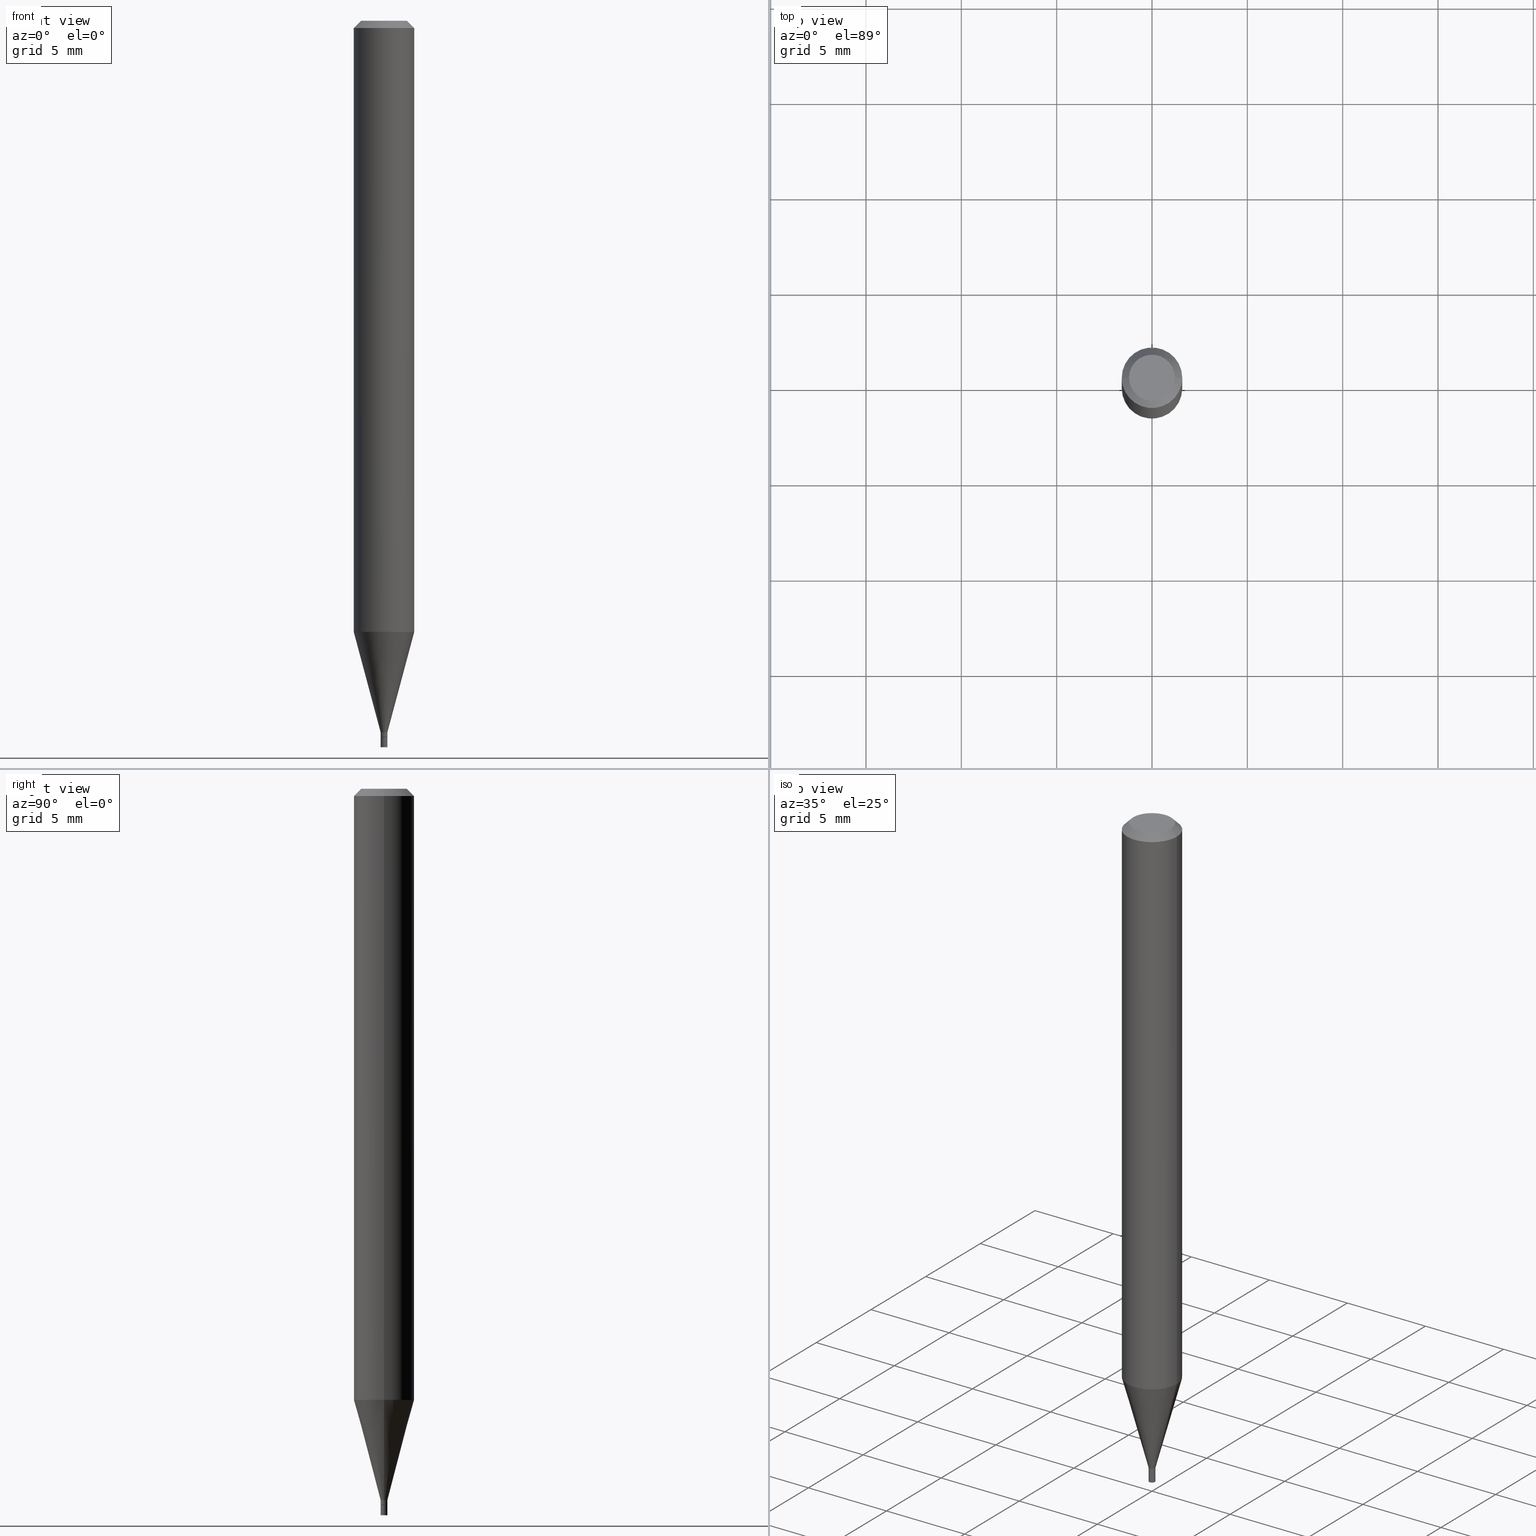
[diagram: canonical four-view strip — front | top / right | iso, engineering-drawing reading convention]
A machine part, canonical four-view strip (front | top / right | iso — engineering-drawing reading convention). The complete STEP part file that produces these views, byte-faithful:
ISO-10303-21;
HEADER;
FILE_DESCRIPTION (( 'STEP AP203' ),
    '1' );
FILE_NAME ('00381.STEP',
    '2024-03-19T21:06:20',
    ( '' ),
    ( '' ),
    'SwSTEP 2.0',
    'SolidWorks 2023',
    '' );
FILE_SCHEMA (( 'CONFIG_CONTROL_DESIGN' ));
ENDSEC;

DATA;
#1 = PERSON_AND_ORGANIZATION ( #192, #408 ) ;
#2 = DATE_AND_TIME ( #32, #464 ) ;
#3 = AXIS2_PLACEMENT_3D ( 'NONE', #134, #100, #136 ) ;
#4 = CARTESIAN_POINT ( 'NONE',  ( -4.460165479722938536E-44, 6.367934238710582481E-30, 1.823848854028390842E-15 ) ) ;
#5 = APPROVAL_DATE_TIME ( #49, #255 ) ;
#6 = PRODUCT_RELATED_PRODUCT_CATEGORY ( 'detail', '', ( #358 ) ) ;
#7 = AXIS2_PLACEMENT_3D ( 'NONE', #172, #319, #315 ) ;
#8 = ORIENTED_EDGE ( 'NONE', *, *, #369, .F. ) ;
#9 = DIRECTION ( 'NONE',  ( 1.000000000000000000, -6.982962677686257244E-15, 0.000000000000000000 ) ) ;
#10 = ORIENTED_EDGE ( 'NONE', *, *, #313, .F. ) ;
#11 = LINE ( 'NONE', #87, #432 ) ;
#12 = VERTEX_POINT ( 'NONE', #372 ) ;
#13 = ORIENTED_EDGE ( 'NONE', *, *, #135, .F. ) ;
#14 = EDGE_CURVE ( 'NONE', #454, #157, #399, .T. ) ;
#15 = PRODUCT_DEFINITION_SHAPE ( 'NONE', 'NONE',  #92 ) ;
#16 = CARTESIAN_POINT ( 'NONE',  ( 0.06249999999999999306, -4.842234844977585811E-15, -1.261871180179927610 ) ) ;
#17 = CARTESIAN_POINT ( 'NONE',  ( -0.007000000000000001013, -5.150823462703658756E-15, -1.479000000000000092 ) ) ;
#18 = ORIENTED_EDGE ( 'NONE', *, *, #369, .T. ) ;
#19 = VERTEX_POINT ( 'NONE', #79 ) ;
#20 = ORIENTED_EDGE ( 'NONE', *, *, #248, .T. ) ;
#21 = CONICAL_SURFACE ( 'NONE', #407, 0.006999999999999920348, 0.2617993877991500740 ) ;
#22 = LOCAL_TIME ( 17, 6, 20.00000000000000000, #280 ) ;
#23 = ORIENTED_EDGE ( 'NONE', *, *, #310, .T. ) ;
#24 = DIRECTION ( 'NONE',  ( 1.000000000000000000, -6.982962677686266711E-15, 4.876176775795935232E-29 ) ) ;
#25 = LINE ( 'NONE', #427, #439 ) ;
#26 = PLANE ( 'NONE',  #112 ) ;
#27 = PERSON_AND_ORGANIZATION ( #192, #408 ) ;
#28 = PERSON_AND_ORGANIZATION ( #192, #408 ) ;
#29 = CARTESIAN_POINT ( 'NONE',  ( -0.006999999999999920348, -4.520479281514752345E-15, -1.469000000000000083 ) ) ;
#30 = EDGE_CURVE ( 'NONE', #81, #12, #161, .T. ) ;
#31 = CARTESIAN_POINT ( 'NONE',  ( 3.668203209277705088E-31, -5.237222008264718399E-17, -0.01499999999999999944 ) ) ;
#32 = CALENDAR_DATE ( 2024, 19, 3 ) ;
#33 = DIRECTION ( 'NONE',  ( -1.000000000000000000, 6.982962677686265922E-15, -4.876176775795935793E-29 ) ) ;
#34 = PLANE ( 'NONE',  #108 ) ;
#35 = FACE_OUTER_BOUND ( 'NONE', #309, .T. ) ;
#36 = LENGTH_MEASURE_WITH_UNIT ( LENGTH_MEASURE( 0.02539999999999999897 ), #252 );
#37 = DIRECTION ( 'NONE',  ( -2.445468806185136597E-29, 3.491481338843145583E-15, 1.000000000000000000 ) ) ;
#38 = AXIS2_PLACEMENT_3D ( 'NONE', #91, #414, #198 ) ;
#39 = ADVANCED_FACE ( 'NONE', ( #271 ), #254, .T. ) ;
#40 = DIRECTION ( 'NONE',  ( -2.445468806185136877E-29, 3.491481338843145188E-15, 1.000000000000000000 ) ) ;
#41 = DIRECTION ( 'NONE',  ( -0.7071067811865044961, 2.468850131081806621E-15, -0.7071067811865903163 ) ) ;
#42 = ORIENTED_EDGE ( 'NONE', *, *, #245, .F. ) ;
#43 = DIRECTION ( 'NONE',  ( -0.2588190451025213501, 5.211531920934551042E-15, 0.9659258262890682012 ) ) ;
#44 = CC_DESIGN_DATE_AND_TIME_ASSIGNMENT ( #2, #441, ( #216 ) ) ;
#45 = ORIENTED_EDGE ( 'NONE', *, *, #418, .T. ) ;
#46 = AXIS2_PLACEMENT_3D ( 'NONE', #249, #297, #90 ) ;
#47 = DIRECTION ( 'NONE',  ( 1.000000000000000000, -6.982962677686332186E-15, 0.000000000000000000 ) ) ;
#48 = ORIENTED_EDGE ( 'NONE', *, *, #110, .T. ) ;
#49 = DATE_AND_TIME ( #158, #181 ) ;
#50 = EDGE_LOOP ( 'NONE', ( #243, #430 ) ) ;
#51 = DIRECTION ( 'NONE',  ( -2.445468806185136597E-29, 3.491481338843145583E-15, 1.000000000000000000 ) ) ;
#52 = FACE_OUTER_BOUND ( 'NONE', #123, .T. ) ;
#53 = CIRCLE ( 'NONE', #38, 0.007000000000000001013 ) ;
#54 = AXIS2_PLACEMENT_3D ( 'NONE', #388, #217, #24 ) ;
#55 = ORIENTED_EDGE ( 'NONE', *, *, #418, .F. ) ;
#56 = VERTEX_POINT ( 'NONE', #253 ) ;
#57 = CARTESIAN_POINT ( 'NONE',  ( 3.615625629944724521E-29, -5.162155159479591157E-15, -1.478500000000000147 ) ) ;
#58 = VECTOR ( 'NONE', #43, 39.37007874015747433 ) ;
#59 = CARTESIAN_POINT ( 'NONE',  ( 0.000000000000000000, 0.000000000000000000, 0.000000000000000000 ) ) ;
#60 = CARTESIAN_POINT ( 'NONE',  ( 0.000000000000000000, 0.000000000000000000, 0.000000000000000000 ) ) ;
#61 = PERSON_AND_ORGANIZATION_ROLE ( 'design_owner' ) ;
#62 = EDGE_CURVE ( 'NONE', #19, #199, #281, .T. ) ;
#63 = CALENDAR_DATE ( 2024, 19, 3 ) ;
#64 = DIRECTION ( 'NONE',  ( -2.438088387897960049E-29, 3.491481338843145188E-15, 1.000000000000000000 ) ) ;
#65 = DIRECTION ( 'NONE',  ( 1.000000000000000000, -6.982962677686257244E-15, 0.000000000000000000 ) ) ;
#66 = APPROVAL_DATE_TIME ( #256, #165 ) ;
#67 = AXIS2_PLACEMENT_3D ( 'NONE', #327, #173, #316 ) ;
#68 = VECTOR ( 'NONE', #178, 39.37007874015748143 ) ;
#69 = SECURITY_CLASSIFICATION_LEVEL ( 'unclassified' ) ;
#70 = DIRECTION ( 'NONE',  ( 1.000000000000000000, -6.982962677686273021E-15, 0.000000000000000000 ) ) ;
#71 = PERSON_AND_ORGANIZATION ( #192, #408 ) ;
#72 = FACE_OUTER_BOUND ( 'NONE', #318, .T. ) ;
#73 = DIRECTION ( 'NONE',  ( 1.000000000000000000, -6.982962677686273021E-15, 0.000000000000000000 ) ) ;
#74 = AXIS2_PLACEMENT_3D ( 'NONE', #196, #235, #338 ) ;
#75 = AXIS2_PLACEMENT_3D ( 'NONE', #445, #415, #201 ) ;
#76 = COORDINATED_UNIVERSAL_TIME_OFFSET ( 5, 0, .BEHIND. ) ;
#77 = EDGE_CURVE ( 'NONE', #454, #383, #182, .T. ) ;
#78 = EDGE_LOOP ( 'NONE', ( #96, #264, #239, #89 ) ) ;
#79 = CARTESIAN_POINT ( 'NONE',  ( -0.06249999999999999306, -3.961710467772130736E-15, -1.261871180179927610 ) ) ;
#80 = CARTESIAN_POINT ( 'NONE',  ( 3.616848364347817323E-29, -5.163900900149012660E-15, -1.479000000000000092 ) ) ;
#81 = VERTEX_POINT ( 'NONE', #140 ) ;
#82 = CC_DESIGN_APPROVAL ( #233, ( #92 ) ) ;
#83 = DIRECTION ( 'NONE',  ( -2.445468806185136877E-29, 3.491481338843145188E-15, 1.000000000000000000 ) ) ;
#84 = DIRECTION ( 'NONE',  ( -2.445468806185136877E-29, 3.491481338843145188E-15, 1.000000000000000000 ) ) ;
#85 = CARTESIAN_POINT ( 'NONE',  ( -0.006999999999999922951, -5.112417167976384888E-15, -1.478500000000000147 ) ) ;
#86 = LINE ( 'NONE', #240, #322 ) ;
#87 = CARTESIAN_POINT ( 'NONE',  ( 0.006500000000000000569, -5.209290157553973331E-15, -1.479000000000000092 ) ) ;
#88 = CARTESIAN_POINT ( 'NONE',  ( 0.006999999999999920348, -5.177866825504383900E-15, -1.469000000000000083 ) ) ;
#89 = ORIENTED_EDGE ( 'NONE', *, *, #125, .F. ) ;
#90 = DIRECTION ( 'NONE',  ( 1.000000000000000000, -6.982962677686257244E-15, 0.000000000000000000 ) ) ;
#91 = CARTESIAN_POINT ( 'NONE',  ( 3.616848364347817323E-29, -5.163900900149012660E-15, -1.479000000000000092 ) ) ;
#92 = PRODUCT_DEFINITION ( 'UNKNOWN', '', #301, #213 ) ;
#93 = VERTEX_POINT ( 'NONE', #29 ) ;
#94 = AXIS2_PLACEMENT_3D ( 'NONE', #126, #51, #311 ) ;
#95 = ORIENTED_EDGE ( 'NONE', *, *, #248, .F. ) ;
#96 = ORIENTED_EDGE ( 'NONE', *, *, #149, .F. ) ;
#97 = DIRECTION ( 'NONE',  ( 1.000000000000000000, -6.982962677686332186E-15, 0.000000000000000000 ) ) ;
#98 = ADVANCED_FACE ( 'NONE', ( #402 ), #107, .F. ) ;
#99 = VECTOR ( 'NONE', #257, 39.37007874015748143 ) ;
#100 = DIRECTION ( 'NONE',  ( -2.445468806185136597E-29, 3.491481338843145583E-15, 1.000000000000000000 ) ) ;
#101 = APPLICATION_PROTOCOL_DEFINITION ( 'international standard', 'config_control_design', 1994, #194 ) ;
#102 = AXIS2_PLACEMENT_3D ( 'NONE', #285, #436, #70 ) ;
#103 = CYLINDRICAL_SURFACE ( 'NONE', #215, 0.006999999999999922083 ) ;
#104 = EDGE_CURVE ( 'NONE', #157, #132, #25, .T. ) ;
#105 = APPLICATION_PROTOCOL_DEFINITION ( 'international standard', 'config_control_design', 1994, #266 ) ;
#106 = APPROVAL_STATUS ( 'not_yet_approved' ) ;
#107 = PLANE ( 'NONE',  #344 ) ;
#108 = AXIS2_PLACEMENT_3D ( 'NONE', #294, #291, #295 ) ;
#109 = CARTESIAN_POINT ( 'NONE',  ( 3.668203209277705088E-31, -5.237222008264718399E-17, -0.01499999999999999944 ) ) ;
#110 = EDGE_CURVE ( 'NONE', #275, #269, #236, .T. ) ;
#111 = DIRECTION ( 'NONE',  ( 1.000000000000000000, -6.982962677686266711E-15, 0.000000000000000000 ) ) ;
#112 = AXIS2_PLACEMENT_3D ( 'NONE', #428, #425, #169 ) ;
#113 = APPROVAL_PERSON_ORGANIZATION ( #28, #233, #355 ) ;
#114 = ADVANCED_FACE ( 'NONE', ( #448 ), #21, .T. ) ;
#115 = ORIENTED_EDGE ( 'NONE', *, *, #62, .F. ) ;
#116 = ORIENTED_EDGE ( 'NONE', *, *, #457, .T. ) ;
#117 = CARTESIAN_POINT ( 'NONE',  ( -0.06250000000000000000, 3.840629472727444916E-16, -0.01499999999999999944 ) ) ;
#118 = ORIENTED_EDGE ( 'NONE', *, *, #286, .T. ) ;
#119 = DIRECTION ( 'NONE',  ( 1.000000000000000000, -6.982962677686266711E-15, 0.000000000000000000 ) ) ;
#120 = CARTESIAN_POINT ( 'NONE',  ( -0.006999999999999922083, 4.973799150320645938E-17, -3.443254563178395329E-31 ) ) ;
#121 = ORIENTED_EDGE ( 'NONE', *, *, #185, .T. ) ;
#122 = ORIENTED_EDGE ( 'NONE', *, *, #434, .F. ) ;
#123 = EDGE_LOOP ( 'NONE', ( #456, #462, #122, #420 ) ) ;
#124 = AXIS2_PLACEMENT_3D ( 'NONE', #246, #64, #221 ) ;
#125 = EDGE_CURVE ( 'NONE', #251, #210, #152, .T. ) ;
#126 = CARTESIAN_POINT ( 'NONE',  ( -4.460165479722938536E-44, 6.367934238710582481E-30, 1.823848854028390842E-15 ) ) ;
#127 = CARTESIAN_POINT ( 'NONE',  ( 0.006999999999999920348, -5.177866825504383900E-15, -1.469000000000000083 ) ) ;
#128 = CLOSED_SHELL ( 'NONE', ( #176, #406, #354, #277, #325, #114, #296, #321, #98, #342, #267, #129 ) ) ;
#129 = ADVANCED_FACE ( 'NONE', ( #290 ), #328, .T. ) ;
#130 = AXIS2_PLACEMENT_3D ( 'NONE', #31, #228, #258 ) ;
#131 = ORIENTED_EDGE ( 'NONE', *, *, #313, .T. ) ;
#132 = VERTEX_POINT ( 'NONE', #265 ) ;
#133 = EDGE_LOOP ( 'NONE', ( #171, #170, #211, #345 ) ) ;
#134 = CARTESIAN_POINT ( 'NONE',  ( 3.592393676285966338E-29, -5.128986086760581011E-15, -1.469000000000000083 ) ) ;
#135 = EDGE_CURVE ( 'NONE', #19, #210, #150, .T. ) ;
#136 = DIRECTION ( 'NONE',  ( 1.000000000000000000, -6.982962677686273021E-15, 0.000000000000000000 ) ) ;
#137 =( NAMED_UNIT ( * ) SI_UNIT ( $, .STERADIAN. ) SOLID_ANGLE_UNIT ( ) );
#138 = FACE_OUTER_BOUND ( 'NONE', #200, .T. ) ;
#139 = PERSON_AND_ORGANIZATION_ROLE ( 'creator' ) ;
#140 = CARTESIAN_POINT ( 'NONE',  ( -0.006500000000000000569, -5.115066395150495301E-15, -1.479000000000000092 ) ) ;
#141 = FACE_OUTER_BOUND ( 'NONE', #382, .T. ) ;
#142 = CARTESIAN_POINT ( 'NONE',  ( 0.000000000000000000, 0.000000000000000000, 0.000000000000000000 ) ) ;
#143 = FACE_OUTER_BOUND ( 'NONE', #268, .T. ) ;
#144 = DATE_AND_TIME ( #435, #22 ) ;
#145 = EDGE_CURVE ( 'NONE', #210, #426, #389, .T. ) ;
#146 = PERSON_AND_ORGANIZATION_ROLE ( 'creator' ) ;
#147 = AXIS2_PLACEMENT_3D ( 'NONE', #263, #409, #332 ) ;
#148 = APPROVAL_PERSON_ORGANIZATION ( #466, #165, #287 ) ;
#149 = EDGE_CURVE ( 'NONE', #56, #251, #347, .T. ) ;
#150 = LINE ( 'NONE', #232, #206 ) ;
#151 = EDGE_CURVE ( 'NONE', #157, #454, #261, .T. ) ;
#152 = LINE ( 'NONE', #117, #367 ) ;
#153 = AXIS2_PLACEMENT_3D ( 'NONE', #395, #278, #65 ) ;
#154 = CC_DESIGN_SECURITY_CLASSIFICATION ( #216, ( #301 ) ) ;
#155 = LINE ( 'NONE', #127, #458 ) ;
#156 = DIRECTION ( 'NONE',  ( -2.445468806185136597E-29, 3.491481338843145583E-15, 1.000000000000000000 ) ) ;
#157 = VERTEX_POINT ( 'NONE', #465 ) ;
#158 = CALENDAR_DATE ( 2024, 19, 3 ) ;
#159 = ORIENTED_EDGE ( 'NONE', *, *, #135, .T. ) ;
#160 = CC_DESIGN_PERSON_AND_ORGANIZATION_ASSIGNMENT ( #219, #360, ( #301 ) ) ;
#161 = CIRCLE ( 'NONE', #74, 0.006500000000000000569 ) ;
#162 = AXIS2_PLACEMENT_3D ( 'NONE', #242, #419, #9 ) ;
#163 = LINE ( 'NONE', #120, #455 ) ;
#164 = ORIENTED_EDGE ( 'NONE', *, *, #223, .F. ) ;
#165 = APPROVAL ( #106, 'UNSPECIFIED' ) ;
#166 = ORIENTED_EDGE ( 'NONE', *, *, #110, .F. ) ;
#167 = FACE_OUTER_BOUND ( 'NONE', #50, .T. ) ;
#168 = VECTOR ( 'NONE', #83, 39.37007874015748143 ) ;
#169 = DIRECTION ( 'NONE',  ( -1.000000000000000000, 6.982962677686265922E-15, -4.876176775795935793E-29 ) ) ;
#170 = ORIENTED_EDGE ( 'NONE', *, *, #14, .T. ) ;
#171 = ORIENTED_EDGE ( 'NONE', *, *, #77, .F. ) ;
#172 = CARTESIAN_POINT ( 'NONE',  ( 3.592393676285966338E-29, -5.128986086760581011E-15, -1.469000000000000083 ) ) ;
#173 = DIRECTION ( 'NONE',  ( -2.445468806185136597E-29, 3.491481338843145583E-15, 1.000000000000000000 ) ) ;
#174 = CARTESIAN_POINT ( 'NONE',  ( -0.06250000000000000000, -1.784996739002358191E-15, -0.01499999999999999944 ) ) ;
#175 = ORIENTED_EDGE ( 'NONE', *, *, #185, .F. ) ;
#176 = ADVANCED_FACE ( 'NONE', ( #429 ), #103, .T. ) ;
#177 = DIRECTION ( 'NONE',  ( 1.000000000000000000, -6.982962677686262766E-15, 0.000000000000000000 ) ) ;
#178 = DIRECTION ( 'NONE',  ( -0.7071067811865642261, 7.493145998870414114E-15, 0.7071067811865309194 ) ) ;
#179 = CIRCLE ( 'NONE', #446, 0.06250000000000000000 ) ;
#180 = DIRECTION ( 'NONE',  ( 1.000000000000000000, -6.982962677686262766E-15, 0.000000000000000000 ) ) ;
#181 = LOCAL_TIME ( 17, 6, 20.00000000000000000, #76 ) ;
#182 = LINE ( 'NONE', #356, #99 ) ;
#183 = DIRECTION ( 'NONE',  ( -1.000000000000000000, 6.982962677686266711E-15, 0.000000000000000000 ) ) ;
#184 = DIRECTION ( 'NONE',  ( 1.000000000000000000, -6.982962677686266711E-15, 4.876176775795935232E-29 ) ) ;
#185 = EDGE_CURVE ( 'NONE', #93, #19, #276, .T. ) ;
#186 =( NAMED_UNIT ( * ) PLANE_ANGLE_UNIT ( ) SI_UNIT ( $, .RADIAN. ) );
#187 = DIRECTION ( 'NONE',  ( -2.445468806185136877E-29, 3.491481338843145188E-15, 1.000000000000000000 ) ) ;
#188 = CARTESIAN_POINT ( 'NONE',  ( 3.592393676285966338E-29, -5.128986086760581011E-15, -1.469000000000000083 ) ) ;
#189 = ORIENTED_EDGE ( 'NONE', *, *, #149, .T. ) ;
#190 = CLOSED_SHELL ( 'NONE', ( #39, #368, #234, #209 ) ) ;
#191 = CONICAL_SURFACE ( 'NONE', #282, 0.06250000000000000000, 0.7853981633973876608 ) ;
#192 = PERSON ( 'UNSPECIFIED', 'UNSPECIFIED', 'UNSPECIFIED', ('UNSPECIFIED'), ('UNSPECIFIED'), ('UNSPECIFIED') ) ;
#193 = EDGE_CURVE ( 'NONE', #383, #132, #53, .T. ) ;
#194 = APPLICATION_CONTEXT ( 'configuration controlled 3d designs of mechanical parts and assemblies' ) ;
#195 = AXIS2_PLACEMENT_3D ( 'NONE', #351, #279, #177 ) ;
#196 = CARTESIAN_POINT ( 'NONE',  ( 3.616848364347817323E-29, -5.163900900149012660E-15, -1.479000000000000092 ) ) ;
#197 = CONICAL_SURFACE ( 'NONE', #102, 0.006999999999999920348, 0.2617993877991500740 ) ;
#198 = DIRECTION ( 'NONE',  ( 1.000000000000000000, -6.982962677686332186E-15, 0.000000000000000000 ) ) ;
#199 = VERTEX_POINT ( 'NONE', #16 ) ;
#200 = EDGE_LOOP ( 'NONE', ( #20, #121, #387, #55 ) ) ;
#201 = DIRECTION ( 'NONE',  ( 1.000000000000000000, -6.982962677686266711E-15, 4.876176775795935793E-29 ) ) ;
#202 = EDGE_CURVE ( 'NONE', #56, #426, #86, .T. ) ;
#203 = DIRECTION ( 'NONE',  ( -2.445468806185136597E-29, 3.491481338843145583E-15, 1.000000000000000000 ) ) ;
#204 = ORIENTED_EDGE ( 'NONE', *, *, #218, .T. ) ;
#205 = DIRECTION ( 'NONE',  ( -2.445468806185136597E-29, 3.491481338843145583E-15, 1.000000000000000000 ) ) ;
#206 = VECTOR ( 'NONE', #40, 39.37007874015748143 ) ;
#207 = LOCAL_TIME ( 17, 6, 20.00000000000000000, #320 ) ;
#208 = ORIENTED_EDGE ( 'NONE', *, *, #30, .T. ) ;
#209 = ADVANCED_FACE ( 'NONE', ( #167 ), #26, .F. ) ;
#210 = VERTEX_POINT ( 'NONE', #174 ) ;
#211 = ORIENTED_EDGE ( 'NONE', *, *, #104, .T. ) ;
#212 = EDGE_LOOP ( 'NONE', ( #118, #189 ) ) ;
#213 = DESIGN_CONTEXT ( 'detailed design', #266, 'design' ) ;
#214 = ORIENTED_EDGE ( 'NONE', *, *, #151, .F. ) ;
#215 = AXIS2_PLACEMENT_3D ( 'NONE', #60, #353, #184 ) ;
#216 = SECURITY_CLASSIFICATION ( '', '', #69 ) ;
#217 = DIRECTION ( 'NONE',  ( -2.445468806185136597E-29, 3.491481338843145583E-15, 1.000000000000000000 ) ) ;
#218 = EDGE_CURVE ( 'NONE', #199, #19, #179, .T. ) ;
#219 = PERSON_AND_ORGANIZATION ( #192, #408 ) ;
#220 = DIRECTION ( 'NONE',  ( -2.445468806185136597E-29, 3.491481338843145583E-15, 1.000000000000000000 ) ) ;
#221 = DIRECTION ( 'NONE',  ( 1.000000000000000000, -6.982962677686265922E-15, 4.876176775795935793E-29 ) ) ;
#222 = PERSON_AND_ORGANIZATION ( #192, #408 ) ;
#223 = EDGE_CURVE ( 'NONE', #12, #81, #357, .T. ) ;
#224 = PERSON_AND_ORGANIZATION ( #192, #408 ) ;
#225 = CARTESIAN_POINT ( 'NONE',  ( 3.316907271900976096E-16, 0.04749999999999999362, 7.460790634191459752E-16 ) ) ;
#226 = DIRECTION ( 'NONE',  ( 1.000000000000000000, -6.982962677686266711E-15, 4.876176775795935793E-29 ) ) ;
#227 = APPROVAL_STATUS ( 'not_yet_approved' ) ;
#228 = DIRECTION ( 'NONE',  ( 2.445468806185136597E-29, -3.491481338843145583E-15, -1.000000000000000000 ) ) ;
#229 = CYLINDRICAL_SURFACE ( 'NONE', #75, 0.06250000000000000000 ) ;
#230 = LINE ( 'NONE', #410, #68 ) ;
#231 = AXIS2_PLACEMENT_3D ( 'NONE', #4, #365, #442 ) ;
#232 = CARTESIAN_POINT ( 'NONE',  ( -0.06250000000000000000, 4.440892098500626162E-16, -3.074334431409316114E-30 ) ) ;
#233 = APPROVAL ( #323, 'UNSPECIFIED' ) ;
#234 = ADVANCED_FACE ( 'NONE', ( #324 ), #288, .T. ) ;
#235 = DIRECTION ( 'NONE',  ( -2.445468806185136597E-29, 3.491481338843145583E-15, 1.000000000000000000 ) ) ;
#236 = CIRCLE ( 'NONE', #67, 0.006999999999999922951 ) ;
#237 = ORIENTED_EDGE ( 'NONE', *, *, #62, .T. ) ;
#238 =( GEOMETRIC_REPRESENTATION_CONTEXT ( 3 ) GLOBAL_UNCERTAINTY_ASSIGNED_CONTEXT ( ( #385 ) ) GLOBAL_UNIT_ASSIGNED_CONTEXT ( ( #438, #186, #137 ) ) REPRESENTATION_CONTEXT ( 'NONE', 'WORKASPACE' ) );
#239 = ORIENTED_EDGE ( 'NONE', *, *, #437, .T. ) ;
#240 = CARTESIAN_POINT ( 'NONE',  ( 0.06250000000000000000, -4.811533449433679005E-16, -0.01499999999999999944 ) ) ;
#241 = LINE ( 'NONE', #379, #337 ) ;
#242 = CARTESIAN_POINT ( 'NONE',  ( 3.616848364347817323E-29, -5.163900900149012660E-15, -1.479000000000000092 ) ) ;
#243 = ORIENTED_EDGE ( 'NONE', *, *, #431, .T. ) ;
#244 = DIRECTION ( 'NONE',  ( 0.7071067811865642261, -2.468850131082431399E-15, 0.7071067811865309194 ) ) ;
#245 = EDGE_CURVE ( 'NONE', #93, #370, #422, .T. ) ;
#246 = CARTESIAN_POINT ( 'NONE',  ( 3.576687321579069994E-29, -5.368277968210015545E-15, -1.500000000000000222 ) ) ;
#247 = ORIENTED_EDGE ( 'NONE', *, *, #245, .T. ) ;
#248 = EDGE_CURVE ( 'NONE', #370, #93, #400, .T. ) ;
#249 = CARTESIAN_POINT ( 'NONE',  ( 3.616848364347817323E-29, -5.163900900149012660E-15, -1.479000000000000092 ) ) ;
#250 = CARTESIAN_POINT ( 'NONE',  ( -0.006999999999999920348, -5.079248095257373954E-15, -1.469000000000000083 ) ) ;
#251 = VERTEX_POINT ( 'NONE', #303 ) ;
#252 =( LENGTH_UNIT ( ) NAMED_UNIT ( * ) SI_UNIT ( $, .METRE. ) );
#253 = CARTESIAN_POINT ( 'NONE',  ( 0.04749999999999999362, -4.035134999187546083E-16, 1.823848854028393603E-15 ) ) ;
#254 = CYLINDRICAL_SURFACE ( 'NONE', #272, 0.007000000000000001013 ) ;
#255 = APPROVAL ( #227, 'UNSPECIFIED' ) ;
#256 = DATE_AND_TIME ( #63, #207 ) ;
#257 = DIRECTION ( 'NONE',  ( -2.445468806185136877E-29, 3.491481338843145188E-15, 1.000000000000000000 ) ) ;
#258 = DIRECTION ( 'NONE',  ( -1.000000000000000000, 6.982962677686266711E-15, 0.000000000000000000 ) ) ;
#259 = CYLINDRICAL_SURFACE ( 'NONE', #381, 0.06250000000000000000 ) ;
#260 = CC_DESIGN_PERSON_AND_ORGANIZATION_ASSIGNMENT ( #222, #146, ( #301 ) ) ;
#261 = CIRCLE ( 'NONE', #416, 0.007000000000000001013 ) ;
#262 = APPROVAL_PERSON_ORGANIZATION ( #71, #255, #366 ) ;
#263 = CARTESIAN_POINT ( 'NONE',  ( 0.000000000000000000, 0.000000000000000000, 0.000000000000000000 ) ) ;
#264 = ORIENTED_EDGE ( 'NONE', *, *, #202, .T. ) ;
#265 = CARTESIAN_POINT ( 'NONE',  ( 0.007000000000000001013, -5.212781638892817127E-15, -1.479000000000000092 ) ) ;
#266 = APPLICATION_CONTEXT ( 'configuration controlled 3d designs of mechanical parts and assemblies' ) ;
#267 = ADVANCED_FACE ( 'NONE', ( #35 ), #274, .T. ) ;
#268 = EDGE_LOOP ( 'NONE', ( #214, #300 ) ) ;
#269 = VERTEX_POINT ( 'NONE', #346 ) ;
#270 = CONICAL_SURFACE ( 'NONE', #162, 0.006500000000000000569, 0.7853981633974718157 ) ;
#271 = FACE_OUTER_BOUND ( 'NONE', #374, .T. ) ;
#272 = AXIS2_PLACEMENT_3D ( 'NONE', #59, #220, #362 ) ;
#273 = AXIS2_PLACEMENT_3D ( 'NONE', #449, #413, #119 ) ;
#274 = CONICAL_SURFACE ( 'NONE', #46, 0.006500000000000000569, 0.7853981633974718157 ) ;
#275 = VERTEX_POINT ( 'NONE', #85 ) ;
#276 = LINE ( 'NONE', #250, #58 ) ;
#277 = ADVANCED_FACE ( 'NONE', ( #375 ), #259, .T. ) ;
#278 = DIRECTION ( 'NONE',  ( -2.445468806185136597E-29, 3.491481338843145583E-15, 1.000000000000000000 ) ) ;
#279 = DIRECTION ( 'NONE',  ( -2.445468806185136597E-29, 3.491481338843145583E-15, 1.000000000000000000 ) ) ;
#280 = COORDINATED_UNIVERSAL_TIME_OFFSET ( 5, 0, .BEHIND. ) ;
#281 = CIRCLE ( 'NONE', #195, 0.06250000000000000000 ) ;
#282 = AXIS2_PLACEMENT_3D ( 'NONE', #109, #394, #183 ) ;
#283 = MANIFOLD_SOLID_BREP ( 'Body-Move/Copy2[1]', #190 ) ;
#284 = MECHANICAL_CONTEXT ( 'NONE', #194, 'mechanical' ) ;
#285 = CARTESIAN_POINT ( 'NONE',  ( 3.592393676285966338E-29, -5.128986086760581011E-15, -1.469000000000000083 ) ) ;
#286 = EDGE_CURVE ( 'NONE', #251, #56, #440, .T. ) ;
#287 = APPROVAL_ROLE ( '' ) ;
#288 = CYLINDRICAL_SURFACE ( 'NONE', #54, 0.007000000000000001013 ) ;
#289 = COORDINATED_UNIVERSAL_TIME_OFFSET ( 5, 0, .BEHIND. ) ;
#290 = FACE_OUTER_BOUND ( 'NONE', #378, .T. ) ;
#291 = DIRECTION ( 'NONE',  ( -2.438088387897960049E-29, 3.491481338843145188E-15, 1.000000000000000000 ) ) ;
#292 = AXIS2_PLACEMENT_3D ( 'NONE', #401, #392, #330 ) ;
#293 = COORDINATED_UNIVERSAL_TIME_OFFSET ( 5, 0, .BEHIND. ) ;
#294 = CARTESIAN_POINT ( 'NONE',  ( 3.616848364347817323E-29, -5.163900900149012660E-15, -1.479000000000000092 ) ) ;
#295 = DIRECTION ( 'NONE',  ( 1.000000000000000000, -6.982962677686265922E-15, 4.876176775795935793E-29 ) ) ;
#296 = ADVANCED_FACE ( 'NONE', ( #72 ), #229, .T. ) ;
#297 = DIRECTION ( 'NONE',  ( -2.445468806185136597E-29, 3.491481338843145583E-15, 1.000000000000000000 ) ) ;
#298 = CARTESIAN_POINT ( 'NONE',  ( 3.668203209277705088E-31, -5.237222008264718399E-17, -0.01499999999999999944 ) ) ;
#299 = CARTESIAN_POINT ( 'NONE',  ( 0.06250000000000000000, -4.364351673553916694E-16, 3.047610484872459871E-30 ) ) ;
#300 = ORIENTED_EDGE ( 'NONE', *, *, #14, .F. ) ;
#301 = PRODUCT_DEFINITION_FORMATION_WITH_SPECIFIED_SOURCE ( 'ANY', '', #358, .NOT_KNOWN. ) ;
#302 = DIRECTION ( 'NONE',  ( 1.000000000000000000, -6.982962677686270655E-15, 0.000000000000000000 ) ) ;
#303 = CARTESIAN_POINT ( 'NONE',  ( -0.04749999999999999362, 3.578768372314242553E-16, 1.823848854028388475E-15 ) ) ;
#304 = DIRECTION ( 'NONE',  ( -2.445468806185136597E-29, 3.491481338843145583E-15, 1.000000000000000000 ) ) ;
#305 = EDGE_LOOP ( 'NONE', ( #204, #159, #350, #8 ) ) ;
#306 = ORIENTED_EDGE ( 'NONE', *, *, #145, .F. ) ;
#307 = AXIS2_PLACEMENT_3D ( 'NONE', #453, #304, #47 ) ;
#308 = CIRCLE ( 'NONE', #417, 0.006999999999999922951 ) ;
#309 = EDGE_LOOP ( 'NONE', ( #384, #208, #23, #166 ) ) ;
#310 = EDGE_CURVE ( 'NONE', #12, #269, #11, .T. ) ;
#311 = DIRECTION ( 'NONE',  ( 1.000000000000000000, -6.982962677686267499E-15, 5.108144071313017768E-29 ) ) ;
#312 = LOCAL_TIME ( 17, 6, 20.00000000000000000, #289 ) ;
#313 = EDGE_CURVE ( 'NONE', #269, #370, #241, .T. ) ;
#314 = EDGE_LOOP ( 'NONE', ( #175, #247, #45, #115 ) ) ;
#315 = DIRECTION ( 'NONE',  ( 1.000000000000000000, -6.982962677686273021E-15, 0.000000000000000000 ) ) ;
#316 = DIRECTION ( 'NONE',  ( 1.000000000000000000, -6.982962677686270655E-15, 0.000000000000000000 ) ) ;
#317 = EDGE_CURVE ( 'NONE', #81, #275, #230, .T. ) ;
#318 = EDGE_LOOP ( 'NONE', ( #13, #237, #18, #306 ) ) ;
#319 = DIRECTION ( 'NONE',  ( -2.445468806185136597E-29, 3.491481338843145583E-15, 1.000000000000000000 ) ) ;
#320 = COORDINATED_UNIVERSAL_TIME_OFFSET ( 5, 0, .BEHIND. ) ;
#321 = ADVANCED_FACE ( 'NONE', ( #141 ), #329, .T. ) ;
#322 = VECTOR ( 'NONE', #352, 39.37007874015748854 ) ;
#323 = APPROVAL_STATUS ( 'not_yet_approved' ) ;
#324 = FACE_OUTER_BOUND ( 'NONE', #133, .T. ) ;
#325 = ADVANCED_FACE ( 'NONE', ( #138 ), #197, .T. ) ;
#326 = DATE_TIME_ROLE ( 'creation_date' ) ;
#327 = CARTESIAN_POINT ( 'NONE',  ( 3.615625629944724521E-29, -5.162155159479591157E-15, -1.478500000000000147 ) ) ;
#328 = CYLINDRICAL_SURFACE ( 'NONE', #147, 0.006999999999999922083 ) ;
#329 = CONICAL_SURFACE ( 'NONE', #130, 0.06250000000000000000, 0.7853981633973876608 ) ;
#330 = DIRECTION ( 'NONE',  ( 1.000000000000000000, 0.000000000000000000, 0.000000000000000000 ) ) ;
#331 = FACE_OUTER_BOUND ( 'NONE', #78, .T. ) ;
#332 = DIRECTION ( 'NONE',  ( 1.000000000000000000, -6.982962677686266711E-15, 4.876176775795935232E-29 ) ) ;
#333 = LINE ( 'NONE', #299, #168 ) ;
#334 = SHAPE_DEFINITION_REPRESENTATION ( #15, #450 ) ;
#335 = CC_DESIGN_DATE_AND_TIME_ASSIGNMENT ( #404, #326, ( #92 ) ) ;
#336 = ORIENTED_EDGE ( 'NONE', *, *, #30, .F. ) ;
#337 = VECTOR ( 'NONE', #84, 39.37007874015748143 ) ;
#338 = DIRECTION ( 'NONE',  ( 1.000000000000000000, -6.982962677686257244E-15, 0.000000000000000000 ) ) ;
#339 = DIRECTION ( 'NONE',  ( -2.445468806185136877E-29, 3.491481338843145188E-15, 1.000000000000000000 ) ) ;
#340 = ORIENTED_EDGE ( 'NONE', *, *, #457, .F. ) ;
#341 = DIRECTION ( 'NONE',  ( 1.000000000000000000, -6.982962677686332186E-15, 0.000000000000000000 ) ) ;
#342 = ADVANCED_FACE ( 'NONE', ( #363 ), #34, .F. ) ;
#343 = CARTESIAN_POINT ( 'NONE',  ( -0.007000000000000001013, -5.150823462703658756E-15, -1.500000000000000222 ) ) ;
#344 = AXIS2_PLACEMENT_3D ( 'NONE', #225, #398, #33 ) ;
#345 = ORIENTED_EDGE ( 'NONE', *, *, #193, .F. ) ;
#346 = CARTESIAN_POINT ( 'NONE',  ( 0.006999999999999922951, -5.211035898223394834E-15, -1.478500000000000147 ) ) ;
#347 = CIRCLE ( 'NONE', #94, 0.04749999999999999362 ) ;
#348 = AXIS2_PLACEMENT_3D ( 'NONE', #80, #205, #97 ) ;
#349 = EDGE_LOOP ( 'NONE', ( #164, #336 ) ) ;
#350 = ORIENTED_EDGE ( 'NONE', *, *, #437, .F. ) ;
#351 = CARTESIAN_POINT ( 'NONE',  ( 3.085866608554036727E-29, -4.405799677622194141E-15, -1.261871180179927610 ) ) ;
#352 = DIRECTION ( 'NONE',  ( 0.7071067811865044961, -7.319954787623109317E-15, -0.7071067811865903163 ) ) ;
#353 = DIRECTION ( 'NONE',  ( -2.445468806185136597E-29, 3.491481338843145583E-15, 1.000000000000000000 ) ) ;
#354 = ADVANCED_FACE ( 'NONE', ( #331 ), #191, .T. ) ;
#355 = APPROVAL_ROLE ( '' ) ;
#356 = CARTESIAN_POINT ( 'NONE',  ( -0.007000000000000001013, 4.973799150320702021E-17, -3.443254563178434303E-31 ) ) ;
#357 = CIRCLE ( 'NONE', #153, 0.006500000000000000569 ) ;
#358 = PRODUCT ( '00381', '00381', '', ( #284 ) ) ;
#359 = CC_DESIGN_APPROVAL ( #165, ( #301 ) ) ;
#360 = PERSON_AND_ORGANIZATION_ROLE ( 'design_supplier' ) ;
#361 = PERSON_AND_ORGANIZATION_ROLE ( 'classification_officer' ) ;
#362 = DIRECTION ( 'NONE',  ( 1.000000000000000000, -6.982962677686266711E-15, 4.876176775795935232E-29 ) ) ;
#363 = FACE_OUTER_BOUND ( 'NONE', #349, .T. ) ;
#364 = CC_DESIGN_PERSON_AND_ORGANIZATION_ASSIGNMENT ( #224, #361, ( #216 ) ) ;
#365 = DIRECTION ( 'NONE',  ( -2.445468806185136597E-29, 3.491481338843145583E-15, 1.000000000000000000 ) ) ;
#366 = APPROVAL_ROLE ( '' ) ;
#367 = VECTOR ( 'NONE', #41, 39.37007874015748854 ) ;
#368 = ADVANCED_FACE ( 'NONE', ( #143 ), #460, .F. ) ;
#369 = EDGE_CURVE ( 'NONE', #199, #426, #333, .T. ) ;
#370 = VERTEX_POINT ( 'NONE', #88 ) ;
#371 = CIRCLE ( 'NONE', #348, 0.007000000000000001013 ) ;
#372 = CARTESIAN_POINT ( 'NONE',  ( 0.006500000000000000569, -5.209290157553973331E-15, -1.479000000000000092 ) ) ;
#373 = CARTESIAN_POINT ( 'NONE',  ( 3.668203209277704895E-29, -5.237222008264718177E-15, -1.500000000000000222 ) ) ;
#374 = EDGE_LOOP ( 'NONE', ( #424, #452, #433, #423 ) ) ;
#375 = FACE_OUTER_BOUND ( 'NONE', #305, .T. ) ;
#376 = CARTESIAN_POINT ( 'NONE',  ( 0.06250000000000000000, -4.888073874380388472E-16, -0.01499999999999999944 ) ) ;
#377 = ORIENTED_EDGE ( 'NONE', *, *, #125, .T. ) ;
#378 = EDGE_LOOP ( 'NONE', ( #340, #48, #131, #42 ) ) ;
#379 = CARTESIAN_POINT ( 'NONE',  ( 0.006999999999999922083, -4.888073874380332019E-17, 3.413323743057116817E-31 ) ) ;
#380 = ORIENTED_EDGE ( 'NONE', *, *, #434, .T. ) ;
#381 = AXIS2_PLACEMENT_3D ( 'NONE', #142, #403, #226 ) ;
#382 = EDGE_LOOP ( 'NONE', ( #461, #411, #377, #451 ) ) ;
#383 = VERTEX_POINT ( 'NONE', #17 ) ;
#384 = ORIENTED_EDGE ( 'NONE', *, *, #317, .F. ) ;
#385 = UNCERTAINTY_MEASURE_WITH_UNIT (LENGTH_MEASURE( 1.000000000000000082E-05 ), #438, 'distance_accuracy_value', 'NONE');
#386 = CARTESIAN_POINT ( 'NONE',  ( 3.085866608554036727E-29, -4.405799677622194141E-15, -1.261871180179927610 ) ) ;
#387 = ORIENTED_EDGE ( 'NONE', *, *, #218, .F. ) ;
#388 = CARTESIAN_POINT ( 'NONE',  ( 0.000000000000000000, 0.000000000000000000, 0.000000000000000000 ) ) ;
#389 = CIRCLE ( 'NONE', #463, 0.06250000000000000000 ) ;
#390 = CIRCLE ( 'NONE', #273, 0.06250000000000000000 ) ;
#391 = EDGE_LOOP ( 'NONE', ( #380, #116, #95, #10 ) ) ;
#392 = DIRECTION ( 'NONE',  ( 0.000000000000000000, 0.000000000000000000, 1.000000000000000000 ) ) ;
#393 = CC_DESIGN_PERSON_AND_ORGANIZATION_ASSIGNMENT ( #1, #61, ( #358 ) ) ;
#394 = DIRECTION ( 'NONE',  ( 2.445468806185136597E-29, -3.491481338843145583E-15, -1.000000000000000000 ) ) ;
#395 = CARTESIAN_POINT ( 'NONE',  ( 3.616848364347817323E-29, -5.163900900149012660E-15, -1.479000000000000092 ) ) ;
#396 = CALENDAR_DATE ( 2024, 19, 3 ) ;
#397 = APPROVAL_DATE_TIME ( #144, #233 ) ;
#398 = DIRECTION ( 'NONE',  ( 2.438088387897960049E-29, -3.491481338843145188E-15, -1.000000000000000000 ) ) ;
#399 = CIRCLE ( 'NONE', #307, 0.007000000000000001013 ) ;
#400 = CIRCLE ( 'NONE', #3, 0.006999999999999920348 ) ;
#401 = CARTESIAN_POINT ( 'NONE',  ( 0.000000000000000000, 0.000000000000000000, 0.000000000000000000 ) ) ;
#402 = FACE_OUTER_BOUND ( 'NONE', #212, .T. ) ;
#403 = DIRECTION ( 'NONE',  ( -2.445468806185136597E-29, 3.491481338843145583E-15, 1.000000000000000000 ) ) ;
#404 = DATE_AND_TIME ( #396, #312 ) ;
#405 = DIMENSIONAL_EXPONENTS ( 1.000000000000000000, 0.000000000000000000, 0.000000000000000000, 0.000000000000000000, 0.000000000000000000, 0.000000000000000000, 0.000000000000000000 ) ;
#406 = ADVANCED_FACE ( 'NONE', ( #52 ), #270, .T. ) ;
#407 = AXIS2_PLACEMENT_3D ( 'NONE', #188, #37, #73 ) ;
#408 = ORGANIZATION ( 'UNSPECIFIED', 'UNSPECIFIED', '' ) ;
#409 = DIRECTION ( 'NONE',  ( -2.445468806185136597E-29, 3.491481338843145583E-15, 1.000000000000000000 ) ) ;
#410 = CARTESIAN_POINT ( 'NONE',  ( -0.006500000000000000569, -5.117715622324605713E-15, -1.479000000000000092 ) ) ;
#411 = ORIENTED_EDGE ( 'NONE', *, *, #286, .F. ) ;
#412 = DIRECTION ( 'NONE',  ( 0.2588190451025213501, 1.565188264969621968E-15, 0.9659258262890682012 ) ) ;
#413 = DIRECTION ( 'NONE',  ( -2.445468806185136597E-29, 3.491481338843145583E-15, 1.000000000000000000 ) ) ;
#414 = DIRECTION ( 'NONE',  ( -2.445468806185136597E-29, 3.491481338843145583E-15, 1.000000000000000000 ) ) ;
#415 = DIRECTION ( 'NONE',  ( -2.445468806185136597E-29, 3.491481338843145583E-15, 1.000000000000000000 ) ) ;
#416 = AXIS2_PLACEMENT_3D ( 'NONE', #373, #203, #341 ) ;
#417 = AXIS2_PLACEMENT_3D ( 'NONE', #57, #156, #302 ) ;
#418 = EDGE_CURVE ( 'NONE', #370, #199, #155, .T. ) ;
#419 = DIRECTION ( 'NONE',  ( -2.445468806185136597E-29, 3.491481338843145583E-15, 1.000000000000000000 ) ) ;
#420 = ORIENTED_EDGE ( 'NONE', *, *, #310, .F. ) ;
#421 = CC_DESIGN_PERSON_AND_ORGANIZATION_ASSIGNMENT ( #27, #139, ( #92 ) ) ;
#422 = CIRCLE ( 'NONE', #7, 0.006999999999999920348 ) ;
#423 = ORIENTED_EDGE ( 'NONE', *, *, #104, .F. ) ;
#424 = ORIENTED_EDGE ( 'NONE', *, *, #151, .T. ) ;
#425 = DIRECTION ( 'NONE',  ( 2.438088387897960049E-29, -3.491481338843145188E-15, -1.000000000000000000 ) ) ;
#426 = VERTEX_POINT ( 'NONE', #376 ) ;
#427 = CARTESIAN_POINT ( 'NONE',  ( 0.007000000000000001013, -4.888073874380387486E-17, 3.413323743057155353E-31 ) ) ;
#428 = CARTESIAN_POINT ( 'NONE',  ( 4.888073874384003304E-17, 0.006999999999994836741, -1.479000000000000092 ) ) ;
#429 = FACE_OUTER_BOUND ( 'NONE', #391, .T. ) ;
#430 = ORIENTED_EDGE ( 'NONE', *, *, #193, .T. ) ;
#431 = EDGE_CURVE ( 'NONE', #132, #383, #371, .T. ) ;
#432 = VECTOR ( 'NONE', #244, 39.37007874015748143 ) ;
#433 = ORIENTED_EDGE ( 'NONE', *, *, #431, .F. ) ;
#434 = EDGE_CURVE ( 'NONE', #269, #275, #308, .T. ) ;
#435 = CALENDAR_DATE ( 2024, 19, 3 ) ;
#436 = DIRECTION ( 'NONE',  ( -2.445468806185136597E-29, 3.491481338843145583E-15, 1.000000000000000000 ) ) ;
#437 = EDGE_CURVE ( 'NONE', #426, #210, #390, .T. ) ;
#438 =( CONVERSION_BASED_UNIT ( 'INCH', #36 ) LENGTH_UNIT ( ) NAMED_UNIT ( #405 ) );
#439 = VECTOR ( 'NONE', #187, 39.37007874015748143 ) ;
#440 = CIRCLE ( 'NONE', #231, 0.04749999999999999362 ) ;
#441 = DATE_TIME_ROLE ( 'classification_date' ) ;
#442 = DIRECTION ( 'NONE',  ( 1.000000000000000000, -6.982962677686267499E-15, 5.108144071313017768E-29 ) ) ;
#443 = MANIFOLD_SOLID_BREP ( 'Body-Move/Copy2[2]', #128 ) ;
#444 = DIRECTION ( 'NONE',  ( -2.445468806185136597E-29, 3.491481338843145583E-15, 1.000000000000000000 ) ) ;
#445 = CARTESIAN_POINT ( 'NONE',  ( 0.000000000000000000, 0.000000000000000000, 0.000000000000000000 ) ) ;
#446 = AXIS2_PLACEMENT_3D ( 'NONE', #386, #459, #180 ) ;
#447 = CC_DESIGN_APPROVAL ( #255, ( #216 ) ) ;
#448 = FACE_OUTER_BOUND ( 'NONE', #314, .T. ) ;
#449 = CARTESIAN_POINT ( 'NONE',  ( 3.668203209277705088E-31, -5.237222008264718399E-17, -0.01499999999999999944 ) ) ;
#450 = ADVANCED_BREP_SHAPE_REPRESENTATION ( '00381', ( #283, #443, #292 ), #238 ) ;
#451 = ORIENTED_EDGE ( 'NONE', *, *, #145, .T. ) ;
#452 = ORIENTED_EDGE ( 'NONE', *, *, #77, .T. ) ;
#453 = CARTESIAN_POINT ( 'NONE',  ( 3.668203209277704895E-29, -5.237222008264718177E-15, -1.500000000000000222 ) ) ;
#454 = VERTEX_POINT ( 'NONE', #343 ) ;
#455 = VECTOR ( 'NONE', #339, 39.37007874015748143 ) ;
#456 = ORIENTED_EDGE ( 'NONE', *, *, #223, .T. ) ;
#457 = EDGE_CURVE ( 'NONE', #275, #93, #163, .T. ) ;
#458 = VECTOR ( 'NONE', #412, 39.37007874015747433 ) ;
#459 = DIRECTION ( 'NONE',  ( -2.445468806185136597E-29, 3.491481338843145583E-15, 1.000000000000000000 ) ) ;
#460 = PLANE ( 'NONE',  #124 ) ;
#461 = ORIENTED_EDGE ( 'NONE', *, *, #202, .F. ) ;
#462 = ORIENTED_EDGE ( 'NONE', *, *, #317, .T. ) ;
#463 = AXIS2_PLACEMENT_3D ( 'NONE', #298, #444, #111 ) ;
#464 = LOCAL_TIME ( 17, 6, 20.00000000000000000, #293 ) ;
#465 = CARTESIAN_POINT ( 'NONE',  ( 0.007000000000000001013, -5.286102747008522643E-15, -1.500000000000000222 ) ) ;
#466 = PERSON_AND_ORGANIZATION ( #192, #408 ) ;
ENDSEC;
END-ISO-10303-21;
